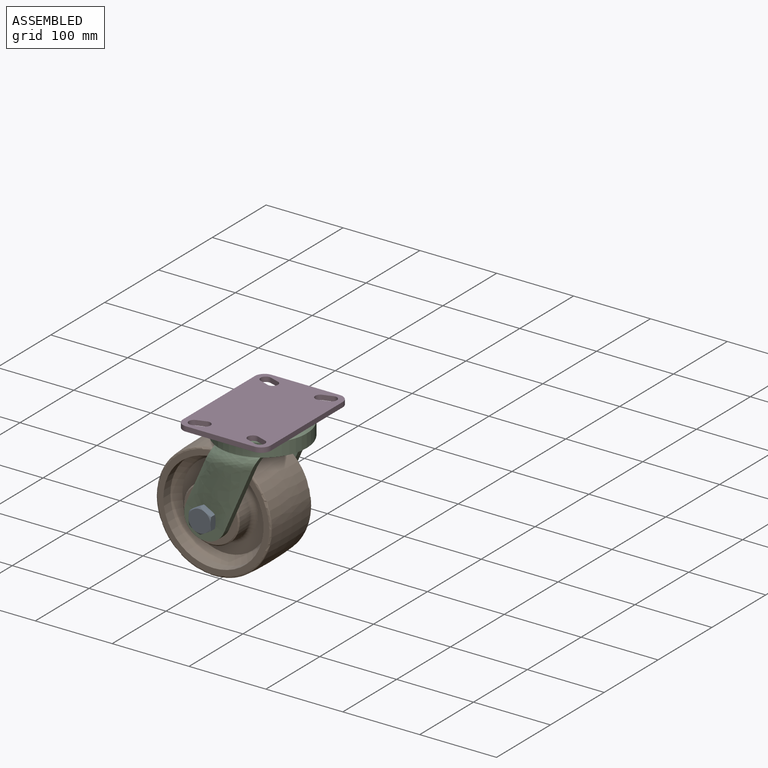
[diagram: assembled view]
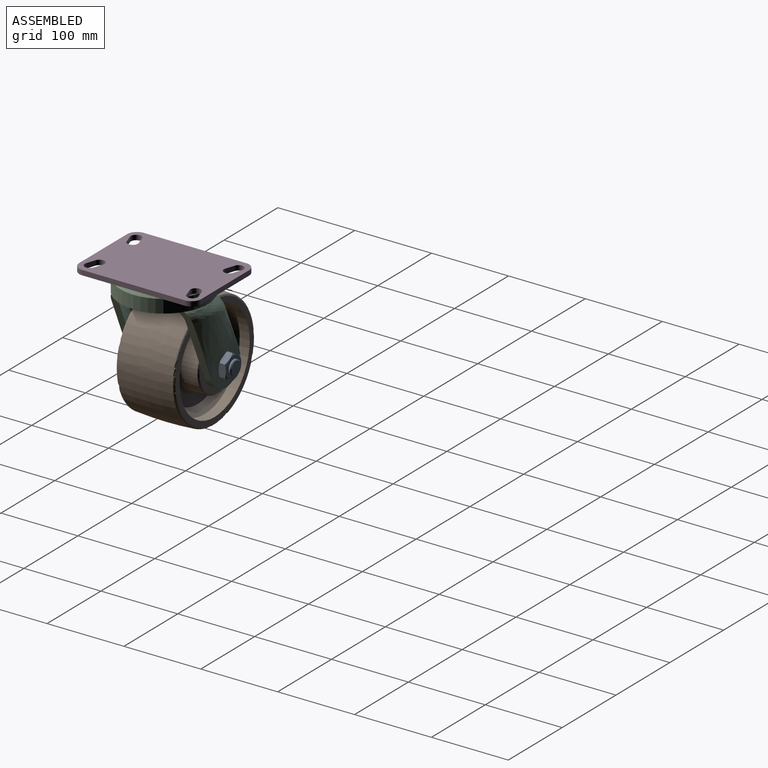
[diagram: assembled view, second angle]
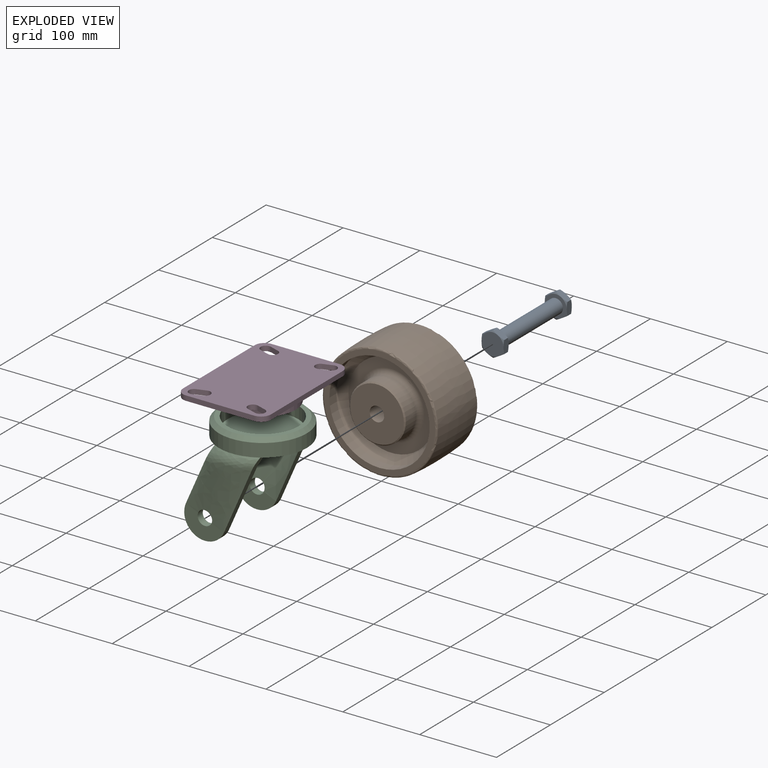
[diagram: exploded view]
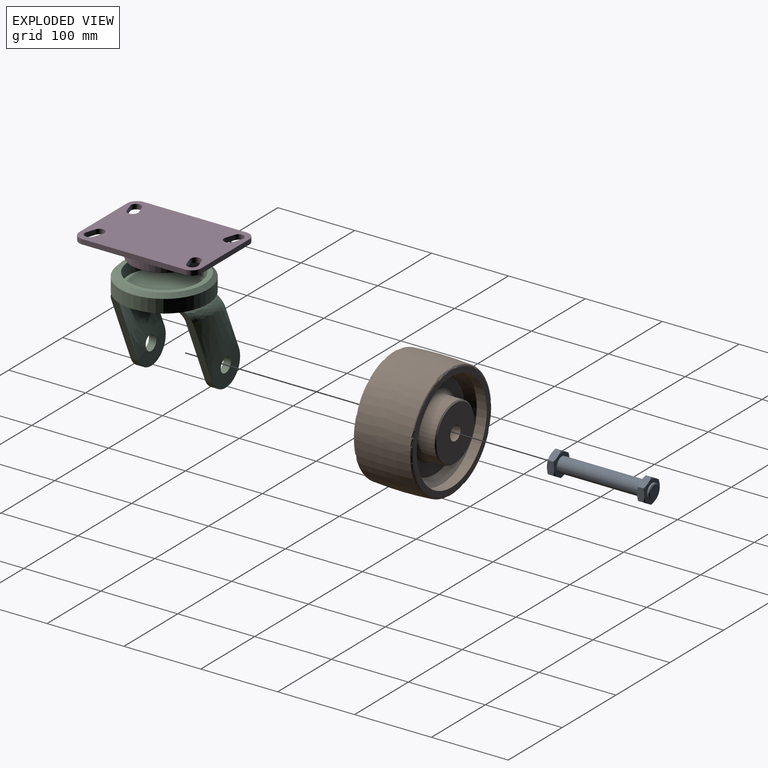
[diagram: exploded view, second angle]
ASSEMBLY  parts=4 mates=3
PART A: 44 faces, bbox 33x130x33 mm
  f0: plane 28.58x28.58mm, normal (0,-1,0), area 641.3mm2, adj f1,f2,f3,f4,f5,f6
  f1: cone r=0mm half-angle=60deg, axis (0,1,0), area 12.7mm2, adj f0,f7,f8
  f2: cone r=0mm half-angle=60deg, axis (0,1,0), area 12.7mm2, adj f0,f8,f9
  f3: cone r=0mm half-angle=60deg, axis (0,1,0), area 12.7mm2, adj f0,f9,f10
  f4: cone r=0mm half-angle=60deg, axis (0,1,0), area 12.7mm2, adj f0,f7,f11
  f5: cone r=0mm half-angle=60deg, axis (0,1,0), area 12.7mm2, adj f0,f10,f12
  f6: cone r=0mm half-angle=60deg, axis (0,1,0), area 12.7mm2, adj f0,f11,f12
  f7: plane 14.29x9.53mm, normal (0.5,0,0.87), area 142.7mm2, adj f1,f4,f8,f11,f13,f14
  f8: plane 14.29x9.53mm, normal (-0.5,0,0.87), area 142.7mm2, adj f1,f2,f7,f9,f14,f15
  f9: plane 16.5x9.53mm, normal (-1,0,0), area 142.7mm2, adj f2,f3,f8,f10,f15,f16
  f10: plane 14.29x9.53mm, normal (-0.5,0,-0.87), area 142.7mm2, adj f3,f5,f9,f12,f16,f17
  f11: plane 16.5x9.53mm, normal (1,0,0), area 142.7mm2, adj f4,f6,f7,f12,f13,f18
  f12: plane 14.29x9.53mm, normal (0.5,0,-0.87), area 142.7mm2, adj f5,f6,f10,f11,f17,f18
  f13: cone r=0mm half-angle=60deg, axis (0,-1,0), area 12.7mm2, adj f7,f11,f19
  f14: cone r=0mm half-angle=60deg, axis (0,-1,0), area 12.7mm2, adj f7,f8,f19
  f15: cone r=0mm half-angle=60deg, axis (0,-1,0), area 12.7mm2, adj f8,f9,f19
  f16: cone r=0mm half-angle=60deg, axis (0,-1,0), area 12.7mm2, adj f9,f10,f19
  f17: cone r=0mm half-angle=60deg, axis (0,-1,0), area 12.7mm2, adj f10,f12,f19
  f18: cone r=0mm half-angle=60deg, axis (0,-1,0), area 12.7mm2, adj f11,f12,f19
  f19: plane 28.58x28.58mm, normal (0,1,0), area 357.8mm2, adj f13,f14,f15,f16,f17,f18,f20
  f20: cylinder r=9.5mm len=107.82mm, axis (0,1,0), area 6435.7mm2, adj f19,f21
  f21: plane 28.58x28.58mm, normal (0,-1,0), area 357.8mm2, adj f20,f22,f23,f24,f25,f26,f27
  f22: cone r=0mm half-angle=60deg, axis (0,1,0), area 12.7mm2, adj f21,f28,f29
  f23: cone r=0mm half-angle=60deg, axis (0,1,0), area 12.7mm2, adj f21,f29,f30
  f24: cone r=0mm half-angle=60deg, axis (0,1,0), area 12.7mm2, adj f21,f30,f31
  f25: cone r=0mm half-angle=60deg, axis (0,1,0), area 12.7mm2, adj f21,f31,f32
  f26: cone r=0mm half-angle=60deg, axis (0,1,0), area 12.7mm2, adj f21,f28,f33
  f27: cone r=0mm half-angle=60deg, axis (0,1,0), area 12.7mm2, adj f21,f32,f33
  f28: plane 14.29x9.53mm, normal (-0.5,0,-0.87), area 142.7mm2, adj f22,f26,f29,f33,f34,f39
  f29: plane 16.5x9.53mm, normal (-1,0,0), area 142.7mm2, adj f22,f23,f28,f30,f34,f35
  f30: plane 14.29x9.53mm, normal (-0.5,0,0.87), area 142.7mm2, adj f23,f24,f29,f31,f35,f36
  f31: plane 14.29x9.53mm, normal (0.5,0,0.87), area 142.7mm2, adj f24,f25,f30,f32,f36,f37
  f32: plane 16.5x9.53mm, normal (1,0,0), area 142.7mm2, adj f25,f27,f31,f33,f37,f38
  f33: plane 14.29x9.53mm, normal (0.5,0,-0.87), area 142.7mm2, adj f26,f27,f28,f32,f38,f39
  f34: cone r=0mm half-angle=60deg, axis (0,-1,0), area 12.7mm2, adj f28,f29,f40
  f35: cone r=0mm half-angle=60deg, axis (0,-1,0), area 12.7mm2, adj f29,f30,f40
  f36: cone r=0mm half-angle=60deg, axis (0,-1,0), area 12.7mm2, adj f30,f31,f40
  f37: cone r=0mm half-angle=60deg, axis (0,-1,0), area 12.7mm2, adj f31,f32,f40
  f38: cone r=0mm half-angle=60deg, axis (0,-1,0), area 12.7mm2, adj f32,f33,f40
  f39: cone r=0mm half-angle=60deg, axis (0,-1,0), area 12.7mm2, adj f28,f33,f40
  f40: plane 28.58x28.58mm, normal (0,1,0), area 357.8mm2, adj f34,f35,f36,f37,f38,f39,f41
  f41: cylinder r=9.5mm len=19mm, axis (0,-1,0), area 128.9mm2, adj f40,f43
  f42: plane 16.97x16.97mm, normal (0,1,0), area 226.1mm2, adj f43
  f43: cone r=0mm half-angle=45deg, axis (0,-1,0), area 81.2mm2, adj f41,f42
PART B: 27 faces, bbox 162.1x85.7x162.1 mm
  f0: torus R=72.33mm, axis (0,1,0), area 882mm2, adj f1,f2,f3
  f1: torus R=72.33mm, axis (0,1,0), area 882mm2, adj f0,f2,f4
  f2: plane 144.65x144.65mm, normal (0,-1,0), area 3094.5mm2, adj f0,f1,f5
  f3: revolved ~152.4x76.2mm, area 8516mm2, adj f0,f4,f6
  f4: revolved ~152.4x76.2mm, area 8516mm2, adj f1,f3,f7
  f5: cylinder r=65.15mm len=130.3mm, axis (0,1,0), area 5329.4mm2, adj f2,f8
  f6: revolved ~152.4x76.2mm, area 8516mm2, adj f3,f7,f9
  f7: revolved ~152.4x76.2mm, area 8516mm2, adj f4,f6,f10
  f8: cone r=0mm half-angle=45deg, axis (0,-1,0), area 4952.9mm2, adj f5,f11
  f9: torus R=72.33mm, axis (0,-1,0), area 882mm2, adj f6,f10,f12
  f10: torus R=72.33mm, axis (0,-1,0), area 882mm2, adj f7,f9,f12
  f11: plane 111.89x111.89mm, normal (0,-1,0), area 4055.5mm2, adj f8,f13,f14
  f12: plane 144.65x144.65mm, normal (0,1,0), area 3094.5mm2, adj f9,f10,f15
  f13: torus R=42.86mm, axis (0,1,0), area 1216.5mm2, adj f11,f14,f16
  f14: torus R=42.86mm, axis (0,1,0), area 1216.5mm2, adj f11,f13,f16
  f15: cylinder r=65.15mm len=130.3mm, axis (0,-1,0), area 5329.4mm2, adj f12,f17
  f16: cylinder r=36.51mm len=73.03mm, axis (0,1,0), area 4384.9mm2, adj f13,f14,f18
  f17: cone r=0mm half-angle=45deg, axis (0,1,0), area 4952.9mm2, adj f15,f19
  f18: cone r=0mm half-angle=45deg, axis (0,1,0), area 484.1mm2, adj f16,f21
  f19: plane 111.89x111.89mm, normal (0,1,0), area 4055.5mm2, adj f17,f20,f22
  f20: torus R=42.86mm, axis (0,-1,0), area 1216.5mm2, adj f19,f22,f24
  f21: plane 69.98x69.98mm, normal (0,-1,0), area 3560.9mm2, adj f18,f23
  f22: torus R=42.86mm, axis (0,-1,0), area 1216.5mm2, adj f19,f20,f24
  f23: cylinder r=9.53mm len=85.73mm, axis (0,1,0), area 5130.4mm2, adj f21,f25
  f24: cylinder r=36.51mm len=73.03mm, axis (0,-1,0), area 4384.9mm2, adj f20,f22,f26
  f25: plane 69.98x69.98mm, normal (0,1,0), area 3560.9mm2, adj f23,f26
  f26: cone r=0mm half-angle=45deg, axis (0,-1,0), area 484.1mm2, adj f24,f25
PART C: 26 faces, bbox 122.4x123.8x136.7 mm
  f0: plane 92.08x92.08mm, normal (0,0,1), area 6658.5mm2, adj f1
  f1: cylinder r=46.04mm len=92.08mm, axis (0,0,-1), area 4610.4mm2, adj f0,f2
  f2: plane 104.14x104.14mm, normal (0,0,1), area 1859.3mm2, adj f1,f3
  f3: cone r=0mm half-angle=45deg, axis (0,0,-1), area 2465.1mm2, adj f2,f10
  f4: plane 50.8x50.8mm, normal (0,0,-1), area 2026.8mm2, adj f11
  f5: plane 51.72x37.78mm, normal (0,-1,0), area 1001.5mm2, adj f6,f8,f9,f12
  f6: cylinder r=9.53mm len=19.05mm, axis (0,1,0), area 283.9mm2, adj f5,f7,f8,f12,f14
  f7: plane 51.72x37.78mm, normal (0,1,0), area 1001.5mm2, adj f6,f8,f9,f14
  f8: cylinder r=9.53mm len=19.05mm, axis (0,1,0), area 284.8mm2, adj f5,f6,f7,f12,f14
  f9: cylinder r=26.99mm len=51.72mm, axis (0,1,0), area 807.6mm2, adj f5,f7,f13,f15
  f10: cylinder r=57.15mm len=114.3mm, axis (0,0,-1), area 6179.3mm2, adj f3,f17
  f11: cylinder r=25.4mm len=50.8mm, axis (0,0,1), area 1520.1mm2, adj f4,f17
  f12: bspline ~98.11x92.28mm, area 5282.7mm2, adj f5,f6,f8,f13,f15,f17
  f13: plane 76.65x33.53mm, normal (-0.92,0,0.4), area 809.5mm2, adj f9,f12,f14,f17
  f14: bspline ~98.11x92.28mm, area 5463mm2, adj f6,f7,f8,f13,f15,f17
  f15: plane 98.16x42.86mm, normal (0.92,0,-0.4), area 1029.9mm2, adj f9,f12,f14,f17
  f16: plane 76.56x33.43mm, normal (-0.92,0,0.4), area 809.6mm2, adj f17,f19,f20,f21
  f17: plane 114.34x114.34mm, normal (0,0,-1), area 7011.8mm2, adj f10,f11,f12,f13,f14,f15,f16,f18
  f18: plane 98.16x42.86mm, normal (0.92,0,-0.4), area 1029.9mm2, adj f17,f19,f20,f21
  f19: cylinder r=26.99mm len=51.72mm, axis (0,-1,0), area 807.6mm2, adj f16,f18,f22,f24
  f20: bspline ~98.11x92.28mm, area 5282.5mm2, adj f16,f17,f18,f23,f24,f25
  f21: bspline ~98.11x92.28mm, area 5463.4mm2, adj f16,f17,f18,f22,f23,f25
  f22: plane 51.72x37.78mm, normal (0,-1,0), area 1001.5mm2, adj f19,f21,f23,f25
  f23: cylinder r=9.53mm len=19.05mm, axis (0,-1,0), area 284.8mm2, adj f20,f21,f22,f24,f25
  f24: plane 51.72x37.78mm, normal (0,1,0), area 1001.5mm2, adj f19,f20,f23,f25
  f25: cylinder r=9.53mm len=19.05mm, axis (0,-1,0), area 283.9mm2, adj f20,f21,f22,f23,f24
PART D: 31 faces, bbox 158.8x114.3x23.8 mm
  f0: plane 53.09x53.09mm, normal (0,0,-1), area 2213.3mm2, adj f1
  f1: cone r=0mm half-angle=45deg, axis (0,0,-1), area 1312.8mm2, adj f0,f2
  f2: cylinder r=31.62mm len=63.25mm, axis (0,0,1), area 2460.3mm2, adj f1,f3
  f3: plane 85.47x85.47mm, normal (0,0,-1), area 2595.9mm2, adj f2,f4
  f4: cylinder r=42.74mm len=85.47mm, axis (0,0,1), area 4688.9mm2, adj f3,f27
  f5: plane 133.35x6.35mm, normal (0,-1,0), area 846.8mm2, adj f6,f12,f27,f28
  f6: cylinder r=12.7mm len=12.7mm, axis (0,0,-1), area 126.7mm2, adj f5,f7,f27,f28
  f7: plane 88.9x6.35mm, normal (1,0,0), area 564.5mm2, adj f6,f8,f27,f28
  f8: cylinder r=12.7mm len=12.7mm, axis (0,0,-1), area 126.7mm2, adj f7,f9,f27,f28
  f9: plane 133.35x6.35mm, normal (0,1,0), area 846.8mm2, adj f8,f10,f27,f28
  f10: cylinder r=12.7mm len=12.7mm, axis (0,0,1), area 126.7mm2, adj f9,f11,f27,f28
  f11: plane 88.9x6.35mm, normal (-1,0,0), area 564.5mm2, adj f10,f12,f27,f28
  f12: cylinder r=12.7mm len=12.7mm, axis (0,0,1), area 126.7mm2, adj f5,f11,f27,f28
  f13: plane 11.91x6.35mm, normal (-0.95,0.32,0), area 79.7mm2, adj f14,f16,f27,f28
  f14: cylinder r=6.73mm len=13.12mm, axis (0,0,1), area 134.3mm2, adj f13,f15,f27,f28
  f15: plane 11.91x6.35mm, normal (0.95,-0.32,0), area 79.7mm2, adj f14,f16,f27,f28
  f16: cylinder r=6.73mm len=13.12mm, axis (0,0,1), area 134.3mm2, adj f13,f15,f27,f28
  f17: cylinder r=6.73mm len=13.12mm, axis (0,0,1), area 134.3mm2, adj f18,f20,f27,f28
  f18: plane 11.91x6.35mm, normal (-0.95,-0.32,0), area 79.7mm2, adj f17,f19,f27,f28
  f19: cylinder r=6.73mm len=13.12mm, axis (0,0,1), area 134.3mm2, adj f18,f20,f27,f28
  f20: plane 11.91x6.35mm, normal (0.95,0.32,0), area 79.7mm2, adj f17,f19,f27,f28
  f21: plane 11.91x6.35mm, normal (0.95,0.32,0), area 79.7mm2, adj f26,f27,f28,f30
  f22: cylinder r=6.73mm len=13.12mm, axis (0,0,1), area 134.3mm2, adj f23,f25,f27,f28
  f23: plane 11.91x6.35mm, normal (0.95,-0.32,0), area 79.7mm2, adj f22,f24,f27,f28
  f24: cylinder r=6.73mm len=13.12mm, axis (0,0,1), area 134.3mm2, adj f23,f25,f27,f28
  f25: plane 11.91x6.35mm, normal (-0.95,0.32,0), area 79.7mm2, adj f22,f24,f27,f28
  f26: cylinder r=6.73mm len=13.12mm, axis (0,0,1), area 134.3mm2, adj f21,f27,f28,f29
  f27: plane 158.75x114.3mm, normal (0,0,-1), area 11024mm2, adj f4,f5,f6,f7,f8,f9,f10,f11
  f28: plane 158.75x114.3mm, normal (0,0,1), area 16761.5mm2, adj f5,f6,f7,f8,f9,f10,f11,f12
  f29: plane 11.91x6.35mm, normal (-0.95,-0.32,0), area 79.7mm2, adj f26,f27,f28,f30
  f30: cylinder r=6.73mm len=13.12mm, axis (0,0,1), area 134.3mm2, adj f21,f27,f28,f29
PLACE A t=(-1.64,28.02,46)mm
PLACE B t=(-1.64,28.65,46)mm
PLACE C t=(-1.64,27.89,46)mm
PLACE D rot(axis=(0,0,1),90deg) t=(36.46,-10.21,44.47)mm
MATE fastened D.f1 <-> C.f1  axis (0,0,-1) through (36.46,27.89,155.6)mm
MATE fastened B.f5 <-> C.f6  axis (0,1,0) through (-1.64,71.52,46)mm
MATE fastened A.f1 <-> C.f6  axis (0,-1,0) through (-1.64,-35.42,46)mm
